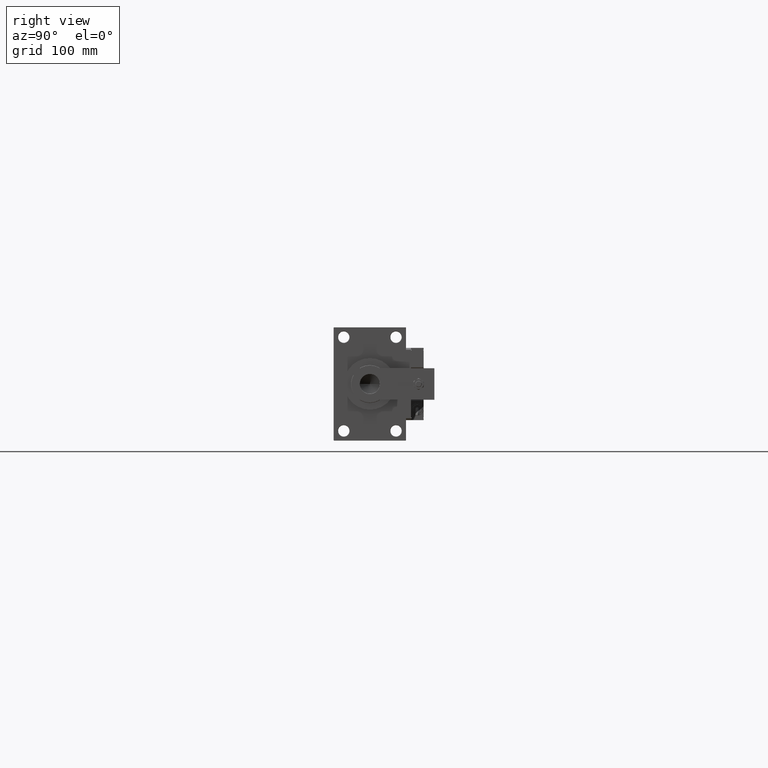
[diagram: clean part render]
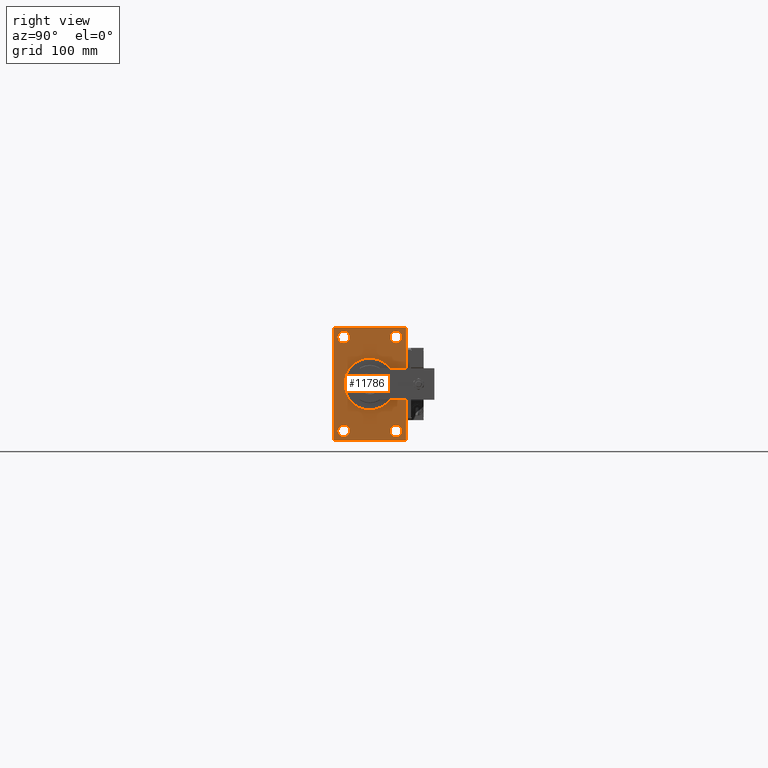
[diagram: same view with one face highlighted and labeled with its STEP entity id]
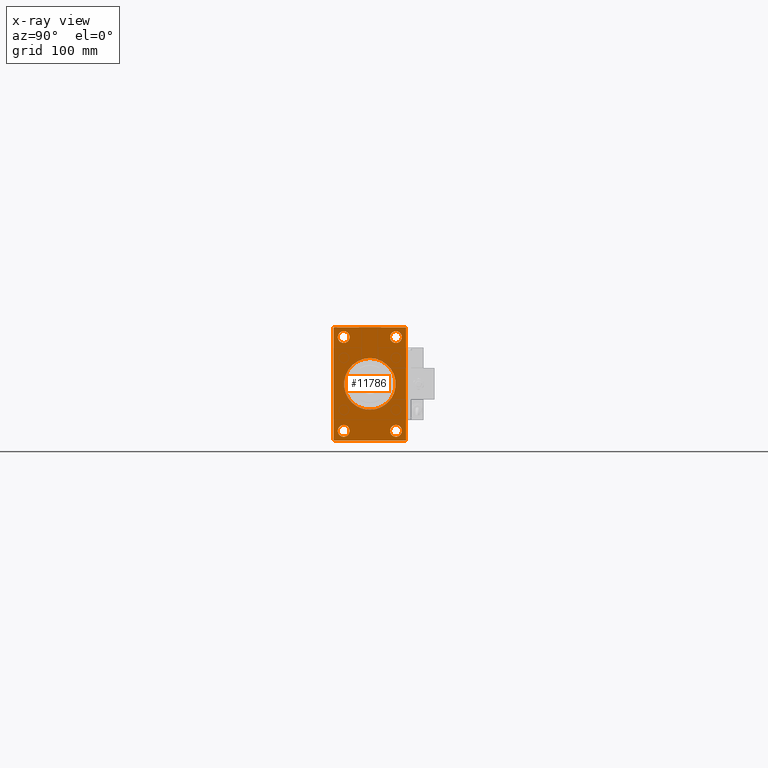
[diagram: x-ray of the same camera — body ghosted, the highlighted face saturated]
A machine part, right view. The second image highlights one B-rep face of the part: STEP entity #11786.
The next image is the same camera in x-ray: the body ghosted, the highlighted face saturated — about 0% of this face is hidden behind the body in this view.
In plain terms, the highlighted planar face has unit normal (-1, 0, 0).
Its self-contained STEP definition (entity closure, byte-faithful):
#285 = AXIS2_PLACEMENT_3D ( 'NONE', #42997, #30341, #47466 ) ;
#668 = DIRECTION ( 'NONE',  ( 0.000000000000000000, 0.000000000000000000, -1.000000000000000000 ) ) ;
#1000 = CARTESIAN_POINT ( 'NONE',  ( 1038.000000000000000, -57.50000000000000000, -89.50000000000000000 ) ) ;
#1021 = CARTESIAN_POINT ( 'NONE',  ( 1038.000000000000000, 41.49999999999999289, -65.00000000000014211 ) ) ;
#1203 = EDGE_CURVE ( 'NONE', #44631, #17293, #47457, .T. ) ;
#1804 = CARTESIAN_POINT ( 'NONE',  ( 1038.000000000000000, -41.50000000000000711, 83.99999999999985789 ) ) ;
#2015 = EDGE_LOOP ( 'NONE', ( #13193, #9240, #25417, #11408, #31151, #42308, #42837, #22962 ) ) ;
#2808 = EDGE_LOOP ( 'NONE', ( #7594, #47735 ) ) ;
#2826 = CARTESIAN_POINT ( 'NONE',  ( 1038.000000000000000, 5.021051876504148963E-15, -41.00000000000000000 ) ) ;
#4129 = EDGE_CURVE ( 'NONE', #43464, #27977, #14838, .T. ) ;
#4280 = CARTESIAN_POINT ( 'NONE',  ( 1038.000000000000000, -57.50000000000000000, 89.49999999999994316 ) ) ;
#4583 = FACE_BOUND ( 'NONE', #7207, .T. ) ;
#4642 = AXIS2_PLACEMENT_3D ( 'NONE', #15311, #54608, #12208 ) ;
#4729 = DIRECTION ( 'NONE',  ( -1.000000000000000000, -0.000000000000000000, -0.000000000000000000 ) ) ;
#4763 = CIRCLE ( 'NONE', #285, 9.499999999999841904 ) ;
#5111 = VECTOR ( 'NONE', #37514, 1000.000000000000114 ) ;
#5131 = FACE_OUTER_BOUND ( 'NONE', #2015, .T. ) ;
#5946 = EDGE_CURVE ( 'NONE', #24044, #35847, #48988, .T. ) ;
#6853 = EDGE_CURVE ( 'NONE', #7246, #32823, #33295, .T. ) ;
#7207 = EDGE_LOOP ( 'NONE', ( #32883, #26577 ) ) ;
#7246 = VERTEX_POINT ( 'NONE', #23010 ) ;
#7311 = AXIS2_PLACEMENT_3D ( 'NONE', #35518, #53206, #43683 ) ;
#7594 = ORIENTED_EDGE ( 'NONE', *, *, #54893, .T. ) ;
#8109 = EDGE_CURVE ( 'NONE', #22693, #54194, #9920, .T. ) ;
#8443 = DIRECTION ( 'NONE',  ( 0.000000000000000000, 0.7071067811866260655, -0.7071067811864690800 ) ) ;
#8617 = CARTESIAN_POINT ( 'NONE',  ( 1038.000000000000000, 0.000000000000000000, 0.000000000000000000 ) ) ;
#8952 = CARTESIAN_POINT ( 'NONE',  ( 1038.000000000000000, -41.50000000000000711, 74.50000000000001421 ) ) ;
#9160 = DIRECTION ( 'NONE',  ( 1.000000000000000000, 0.000000000000000000, 0.000000000000000000 ) ) ;
#9240 = ORIENTED_EDGE ( 'NONE', *, *, #29343, .T. ) ;
#9428 = CARTESIAN_POINT ( 'NONE',  ( 1038.000000000000000, -56.99999999999994316, -90.00000000000000000 ) ) ;
#9626 = FACE_BOUND ( 'NONE', #2808, .T. ) ;
#9920 = LINE ( 'NONE', #52309, #39222 ) ;
#10567 = EDGE_CURVE ( 'NONE', #15723, #22693, #54327, .T. ) ;
#11096 = CARTESIAN_POINT ( 'NONE',  ( 1038.000000000000000, -57.50000000000000000, 89.49999999999994316 ) ) ;
#11408 = ORIENTED_EDGE ( 'NONE', *, *, #47352, .T. ) ;
#11447 = EDGE_CURVE ( 'NONE', #7246, #33566, #21055, .T. ) ;
#11487 = ORIENTED_EDGE ( 'NONE', *, *, #49751, .T. ) ;
#11786 = ADVANCED_FACE ( 'NONE', ( #51478, #9626, #4583, #13005, #52294, #5131 ), #30138, .F. ) ;
#12208 = DIRECTION ( 'NONE',  ( 0.000000000000000000, 0.000000000000000000, 1.000000000000000000 ) ) ;
#12236 = CARTESIAN_POINT ( 'NONE',  ( 1038.000000000000000, 56.99999999999994316, 90.00000000000000000 ) ) ;
#13005 = FACE_BOUND ( 'NONE', #16394, .T. ) ;
#13193 = ORIENTED_EDGE ( 'NONE', *, *, #8109, .T. ) ;
#13864 = EDGE_CURVE ( 'NONE', #27977, #43464, #31265, .T. ) ;
#13933 = CARTESIAN_POINT ( 'NONE',  ( 1038.000000000000000, 0.000000000000000000, 41.00000000000000000 ) ) ;
#14838 = CIRCLE ( 'NONE', #41772, 41.00000000000000000 ) ;
#15311 = CARTESIAN_POINT ( 'NONE',  ( 1038.000000000000000, 41.49999999999999289, 74.50000000000001421 ) ) ;
#15314 = CIRCLE ( 'NONE', #33268, 9.499999999999841904 ) ;
#15723 = VERTEX_POINT ( 'NONE', #48008 ) ;
#16205 = DIRECTION ( 'NONE',  ( 0.000000000000000000, 0.000000000000000000, 1.000000000000000000 ) ) ;
#16377 = DIRECTION ( 'NONE',  ( -1.000000000000000000, -0.000000000000000000, -0.000000000000000000 ) ) ;
#16394 = EDGE_LOOP ( 'NONE', ( #34286, #28066 ) ) ;
#17109 = CARTESIAN_POINT ( 'NONE',  ( 1038.000000000000000, 41.49999999999999289, 83.99999999999985789 ) ) ;
#17293 = VERTEX_POINT ( 'NONE', #9428 ) ;
#18019 = DIRECTION ( 'NONE',  ( -0.000000000000000000, 0.7071067811864690800, 0.7071067811866260655 ) ) ;
#18953 = CARTESIAN_POINT ( 'NONE',  ( 1038.000000000000000, 41.49999999999999289, 65.00000000000017053 ) ) ;
#18972 = CIRCLE ( 'NONE', #26159, 9.499999999999841904 ) ;
#19680 = VECTOR ( 'NONE', #8443, 1000.000000000000114 ) ;
#20006 = VERTEX_POINT ( 'NONE', #51045 ) ;
#20078 = DIRECTION ( 'NONE',  ( 0.000000000000000000, 0.000000000000000000, 1.000000000000000000 ) ) ;
#21055 = LINE ( 'NONE', #51097, #23975 ) ;
#21419 = AXIS2_PLACEMENT_3D ( 'NONE', #8617, #9160, #46794 ) ;
#21558 = AXIS2_PLACEMENT_3D ( 'NONE', #30152, #29878, #25379 ) ;
#22569 = CIRCLE ( 'NONE', #4642, 9.499999999999841904 ) ;
#22693 = VERTEX_POINT ( 'NONE', #4280 ) ;
#22962 = ORIENTED_EDGE ( 'NONE', *, *, #10567, .T. ) ;
#22981 = ORIENTED_EDGE ( 'NONE', *, *, #13864, .F. ) ;
#23010 = CARTESIAN_POINT ( 'NONE',  ( 1038.000000000000000, 57.50000000000000000, 89.50000000000005684 ) ) ;
#23096 = AXIS2_PLACEMENT_3D ( 'NONE', #34070, #43607, #43331 ) ;
#23386 = CARTESIAN_POINT ( 'NONE',  ( 1038.000000000000000, 41.49999999999999289, -83.99999999999982947 ) ) ;
#23975 = VECTOR ( 'NONE', #42682, 1000.000000000000000 ) ;
#24044 = VERTEX_POINT ( 'NONE', #38793 ) ;
#24309 = VECTOR ( 'NONE', #53968, 1000.000000000000000 ) ;
#24897 = CARTESIAN_POINT ( 'NONE',  ( 1038.000000000000000, 41.49999999999999289, -74.49999999999998579 ) ) ;
#25379 = DIRECTION ( 'NONE',  ( 0.000000000000000000, 0.000000000000000000, 1.000000000000000000 ) ) ;
#25384 = VERTEX_POINT ( 'NONE', #17109 ) ;
#25417 = ORIENTED_EDGE ( 'NONE', *, *, #1203, .F. ) ;
#25699 = AXIS2_PLACEMENT_3D ( 'NONE', #30395, #16377, #38558 ) ;
#25863 = EDGE_LOOP ( 'NONE', ( #37259, #11487 ) ) ;
#26159 = AXIS2_PLACEMENT_3D ( 'NONE', #24897, #54395, #16205 ) ;
#26577 = ORIENTED_EDGE ( 'NONE', *, *, #36889, .T. ) ;
#27977 = VERTEX_POINT ( 'NONE', #13933 ) ;
#28066 = ORIENTED_EDGE ( 'NONE', *, *, #33540, .T. ) ;
#28773 = DIRECTION ( 'NONE',  ( -0.000000000000000000, -0.7071067811864690800, -0.7071067811866260655 ) ) ;
#29343 = EDGE_CURVE ( 'NONE', #54194, #17293, #42694, .T. ) ;
#29878 = DIRECTION ( 'NONE',  ( -1.000000000000000000, -0.000000000000000000, -0.000000000000000000 ) ) ;
#30138 = PLANE ( 'NONE',  #23096 ) ;
#30152 = CARTESIAN_POINT ( 'NONE',  ( 1038.000000000000000, -41.50000000000000711, 74.50000000000001421 ) ) ;
#30231 = VECTOR ( 'NONE', #28773, 1000.000000000000114 ) ;
#30341 = DIRECTION ( 'NONE',  ( -1.000000000000000000, -0.000000000000000000, -0.000000000000000000 ) ) ;
#30395 = CARTESIAN_POINT ( 'NONE',  ( 1038.000000000000000, -41.50000000000000711, -74.49999999999998579 ) ) ;
#31151 = ORIENTED_EDGE ( 'NONE', *, *, #11447, .F. ) ;
#31265 = CIRCLE ( 'NONE', #21419, 41.00000000000000000 ) ;
#31999 = EDGE_CURVE ( 'NONE', #20006, #53269, #15314, .T. ) ;
#32069 = LINE ( 'NONE', #41058, #24309 ) ;
#32263 = EDGE_CURVE ( 'NONE', #41724, #25384, #38686, .T. ) ;
#32823 = VERTEX_POINT ( 'NONE', #34307 ) ;
#32883 = ORIENTED_EDGE ( 'NONE', *, *, #51039, .T. ) ;
#33268 = AXIS2_PLACEMENT_3D ( 'NONE', #8952, #4729, #51887 ) ;
#33295 = LINE ( 'NONE', #12236, #5111 ) ;
#33540 = EDGE_CURVE ( 'NONE', #25384, #41724, #22569, .T. ) ;
#33566 = VERTEX_POINT ( 'NONE', #46460 ) ;
#33977 = CARTESIAN_POINT ( 'NONE',  ( 1038.000000000000000, -56.99999999999994316, -90.00000000000000000 ) ) ;
#34070 = CARTESIAN_POINT ( 'NONE',  ( 1038.000000000000000, 0.000000000000000000, 0.000000000000000000 ) ) ;
#34278 = DIRECTION ( 'NONE',  ( 0.000000000000000000, -1.000000000000000000, 0.000000000000000000 ) ) ;
#34286 = ORIENTED_EDGE ( 'NONE', *, *, #32263, .T. ) ;
#34307 = CARTESIAN_POINT ( 'NONE',  ( 1038.000000000000000, 56.99999999999994316, 90.00000000000000000 ) ) ;
#34406 = VECTOR ( 'NONE', #34278, 1000.000000000000000 ) ;
#34846 = EDGE_CURVE ( 'NONE', #32823, #15723, #32069, .T. ) ;
#35419 = LINE ( 'NONE', #43588, #40328 ) ;
#35518 = CARTESIAN_POINT ( 'NONE',  ( 1038.000000000000000, 41.49999999999999289, 74.50000000000001421 ) ) ;
#35847 = VERTEX_POINT ( 'NONE', #48099 ) ;
#35979 = AXIS2_PLACEMENT_3D ( 'NONE', #49557, #46191, #20078 ) ;
#36889 = EDGE_CURVE ( 'NONE', #41745, #37403, #18972, .T. ) ;
#37259 = ORIENTED_EDGE ( 'NONE', *, *, #31999, .T. ) ;
#37403 = VERTEX_POINT ( 'NONE', #23386 ) ;
#37514 = DIRECTION ( 'NONE',  ( 0.000000000000000000, -0.7071067811866260655, 0.7071067811864690800 ) ) ;
#38558 = DIRECTION ( 'NONE',  ( 0.000000000000000000, 0.000000000000000000, 1.000000000000000000 ) ) ;
#38608 = CIRCLE ( 'NONE', #21558, 9.499999999999841904 ) ;
#38686 = CIRCLE ( 'NONE', #7311, 9.499999999999841904 ) ;
#38781 = CARTESIAN_POINT ( 'NONE',  ( 1038.000000000000000, 57.50000000000000000, -90.00000000000000000 ) ) ;
#38793 = CARTESIAN_POINT ( 'NONE',  ( 1038.000000000000000, -41.50000000000000711, -65.00000000000014211 ) ) ;
#39222 = VECTOR ( 'NONE', #668, 1000.000000000000000 ) ;
#39661 = EDGE_LOOP ( 'NONE', ( #22981, #44445 ) ) ;
#40328 = VECTOR ( 'NONE', #18019, 1000.000000000000114 ) ;
#40404 = CARTESIAN_POINT ( 'NONE',  ( 1038.000000000000000, 57.00000000000005684, -90.00000000000000000 ) ) ;
#41058 = CARTESIAN_POINT ( 'NONE',  ( 1038.000000000000000, 57.50000000000000000, 90.00000000000000000 ) ) ;
#41724 = VERTEX_POINT ( 'NONE', #18953 ) ;
#41745 = VERTEX_POINT ( 'NONE', #1021 ) ;
#41772 = AXIS2_PLACEMENT_3D ( 'NONE', #55034, #46620, #47159 ) ;
#42308 = ORIENTED_EDGE ( 'NONE', *, *, #6853, .T. ) ;
#42682 = DIRECTION ( 'NONE',  ( 0.000000000000000000, 0.000000000000000000, -1.000000000000000000 ) ) ;
#42694 = LINE ( 'NONE', #33977, #19680 ) ;
#42837 = ORIENTED_EDGE ( 'NONE', *, *, #34846, .T. ) ;
#42997 = CARTESIAN_POINT ( 'NONE',  ( 1038.000000000000000, -41.50000000000000711, -74.49999999999998579 ) ) ;
#43331 = DIRECTION ( 'NONE',  ( -0.000000000000000000, 0.000000000000000000, 1.000000000000000000 ) ) ;
#43464 = VERTEX_POINT ( 'NONE', #2826 ) ;
#43588 = CARTESIAN_POINT ( 'NONE',  ( 1038.000000000000000, 57.50000000000000000, -89.49999999999994316 ) ) ;
#43607 = DIRECTION ( 'NONE',  ( -1.000000000000000000, 0.000000000000000000, -0.000000000000000000 ) ) ;
#43683 = DIRECTION ( 'NONE',  ( 0.000000000000000000, 0.000000000000000000, 1.000000000000000000 ) ) ;
#44445 = ORIENTED_EDGE ( 'NONE', *, *, #4129, .F. ) ;
#44631 = VERTEX_POINT ( 'NONE', #40404 ) ;
#46191 = DIRECTION ( 'NONE',  ( -1.000000000000000000, -0.000000000000000000, -0.000000000000000000 ) ) ;
#46460 = CARTESIAN_POINT ( 'NONE',  ( 1038.000000000000000, 57.50000000000000000, -89.49999999999988631 ) ) ;
#46620 = DIRECTION ( 'NONE',  ( 1.000000000000000000, 0.000000000000000000, 0.000000000000000000 ) ) ;
#46794 = DIRECTION ( 'NONE',  ( 0.000000000000000000, 0.000000000000000000, -1.000000000000000000 ) ) ;
#47159 = DIRECTION ( 'NONE',  ( 0.000000000000000000, 0.000000000000000000, -1.000000000000000000 ) ) ;
#47352 = EDGE_CURVE ( 'NONE', #44631, #33566, #35419, .T. ) ;
#47457 = LINE ( 'NONE', #38781, #34406 ) ;
#47466 = DIRECTION ( 'NONE',  ( 0.000000000000000000, 0.000000000000000000, 1.000000000000000000 ) ) ;
#47735 = ORIENTED_EDGE ( 'NONE', *, *, #5946, .T. ) ;
#48008 = CARTESIAN_POINT ( 'NONE',  ( 1038.000000000000000, -57.00000000000005684, 90.00000000000000000 ) ) ;
#48099 = CARTESIAN_POINT ( 'NONE',  ( 1038.000000000000000, -41.50000000000000711, -83.99999999999982947 ) ) ;
#48988 = CIRCLE ( 'NONE', #25699, 9.499999999999841904 ) ;
#49557 = CARTESIAN_POINT ( 'NONE',  ( 1038.000000000000000, 41.49999999999999289, -74.49999999999998579 ) ) ;
#49751 = EDGE_CURVE ( 'NONE', #53269, #20006, #38608, .T. ) ;
#50350 = CIRCLE ( 'NONE', #35979, 9.499999999999841904 ) ;
#51039 = EDGE_CURVE ( 'NONE', #37403, #41745, #50350, .T. ) ;
#51045 = CARTESIAN_POINT ( 'NONE',  ( 1038.000000000000000, -41.50000000000000711, 65.00000000000017053 ) ) ;
#51097 = CARTESIAN_POINT ( 'NONE',  ( 1038.000000000000000, 57.50000000000000000, 90.00000000000000000 ) ) ;
#51478 = FACE_BOUND ( 'NONE', #25863, .T. ) ;
#51887 = DIRECTION ( 'NONE',  ( 0.000000000000000000, 0.000000000000000000, 1.000000000000000000 ) ) ;
#52294 = FACE_BOUND ( 'NONE', #39661, .T. ) ;
#52309 = CARTESIAN_POINT ( 'NONE',  ( 1038.000000000000000, -57.50000000000000000, 90.00000000000000000 ) ) ;
#53206 = DIRECTION ( 'NONE',  ( -1.000000000000000000, -0.000000000000000000, -0.000000000000000000 ) ) ;
#53269 = VERTEX_POINT ( 'NONE', #1804 ) ;
#53968 = DIRECTION ( 'NONE',  ( 0.000000000000000000, -1.000000000000000000, 0.000000000000000000 ) ) ;
#54194 = VERTEX_POINT ( 'NONE', #1000 ) ;
#54327 = LINE ( 'NONE', #11096, #30231 ) ;
#54395 = DIRECTION ( 'NONE',  ( -1.000000000000000000, -0.000000000000000000, -0.000000000000000000 ) ) ;
#54608 = DIRECTION ( 'NONE',  ( -1.000000000000000000, -0.000000000000000000, -0.000000000000000000 ) ) ;
#54893 = EDGE_CURVE ( 'NONE', #35847, #24044, #4763, .T. ) ;
#55034 = CARTESIAN_POINT ( 'NONE',  ( 1038.000000000000000, 0.000000000000000000, 0.000000000000000000 ) ) ;